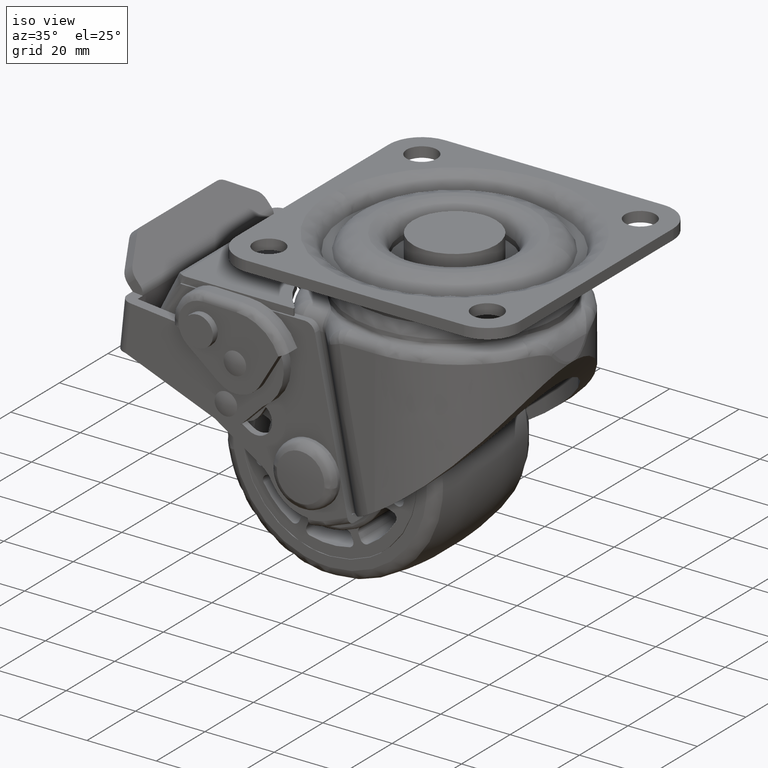
[diagram: clean part render]
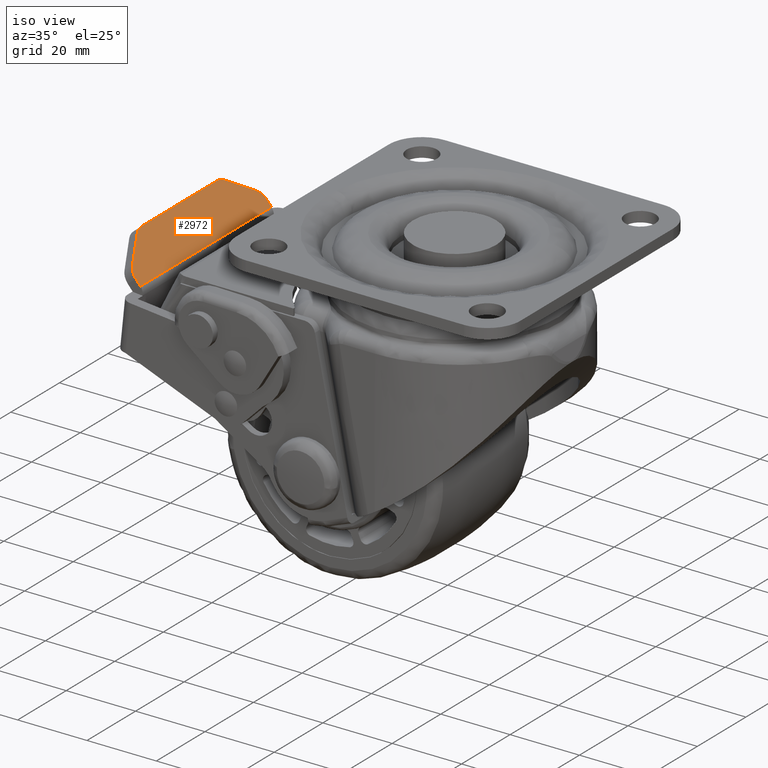
[diagram: same view with one face highlighted and labeled with its STEP entity id]
A machine part, iso view. The second image highlights one B-rep face of the part: STEP entity #2972.
In plain terms, the highlighted face is a freeform B-spline surface patch.
Its self-contained STEP definition (entity closure, byte-faithful):
#2146=CARTESIAN_POINT('',(-57.440192999999887,-15.596875762567301,43.825969000000093));
#2147=VERTEX_POINT('',#2146);
#2153=CARTESIAN_POINT('',(-57.440192999999887,15.596875762566849,43.825969000000093));
#2154=VERTEX_POINT('',#2153);
#2155=CARTESIAN_POINT('',(-57.440192999999887,15.596875762566849,43.825969000000093));
#2156=CARTESIAN_POINT('',(-57.440192999999887,-15.596875762567301,43.825969000000093));
#2157=QUASI_UNIFORM_CURVE('',1,(#2155,#2156),.UNSPECIFIED.,.F.,.U.);
#2158=EDGE_CURVE('',#2154,#2147,#2157,.T.);
#2623=CARTESIAN_POINT('',(-56.875527778846603,18.095655952784401,43.155559537941002));
#2624=VERTEX_POINT('',#2623);
#2625=CARTESIAN_POINT('',(-56.875527778846603,18.095655952784401,43.155559537941002));
#2626=CARTESIAN_POINT('',(-56.977366238581958,17.898089788612811,43.276469175103841));
#2627=CARTESIAN_POINT('',(-57.166745423999537,17.449204319974800,43.501313194293978));
#2628=CARTESIAN_POINT('',(-57.382708289088207,16.608947584924440,43.757719189890999));
#2629=CARTESIAN_POINT('',(-57.440260782196617,15.962371717794131,43.826049475695022));
#2630=CARTESIAN_POINT('',(-57.440192999999887,15.596875762566849,43.825969000000093));
#2631=B_SPLINE_CURVE_WITH_KNOTS('',3,(#2625,#2626,#2627,#2628,#2629,#2630),.UNSPECIFIED.,.F.,.U.,(4,1,1,4),(0.000000032944542,0.759098628505405,1.602524868357212,2.699013758988474),.UNSPECIFIED.);
#2632=EDGE_CURVE('',#2624,#2154,#2631,.T.);
#2682=CARTESIAN_POINT('',(-53.060199824728400,25.498780190217349,38.625739273687550));
#2683=VERTEX_POINT('',#2682);
#2689=CARTESIAN_POINT('',(-51.048028678050308,27.0,36.236751028121503));
#2690=VERTEX_POINT('',#2689);
#2691=CARTESIAN_POINT('',(-51.048028678050308,27.0,36.236751028121503));
#2692=CARTESIAN_POINT('',(-51.384821109852084,27.000528099568559,36.636614211776767));
#2693=CARTESIAN_POINT('',(-51.913671210352419,26.836626970371292,37.264501494549982));
#2694=CARTESIAN_POINT('',(-52.591831552820793,26.255801181383379,38.069660185668141));
#2695=CARTESIAN_POINT('',(-52.910013859882227,25.790418917581860,38.447428146794202));
#2696=CARTESIAN_POINT('',(-53.060199824728400,25.498780190217349,38.625739273687550));
#2697=B_SPLINE_CURVE_WITH_KNOTS('',3,(#2691,#2692,#2693,#2694,#2695,#2696),.UNSPECIFIED.,.F.,.U.,(4,1,1,4),(0.000000061317118,1.568131767088776,2.464169144986196,3.584250810880933),.UNSPECIFIED.);
#2698=EDGE_CURVE('',#2690,#2683,#2697,.T.);
#2732=CARTESIAN_POINT('',(-56.875527778846497,-18.095655952785151,43.155559537940803));
#2733=VERTEX_POINT('',#2732);
#2739=CARTESIAN_POINT('',(-57.440192999999887,-15.596875762567301,43.825969000000093));
#2740=CARTESIAN_POINT('',(-57.440345620462587,-16.018620693279161,43.826150201530680));
#2741=CARTESIAN_POINT('',(-57.347622997139510,-16.918100144595829,43.716063513535502));
#2742=CARTESIAN_POINT('',(-57.068106569650460,-17.722665557511920,43.384202349133012));
#2743=CARTESIAN_POINT('',(-56.875527778846497,-18.095655952785151,43.155559537940803));
#2744=B_SPLINE_CURVE_WITH_KNOTS('',3,(#2739,#2740,#2741,#2742,#2743),.UNSPECIFIED.,.F.,.U.,(4,1,4),(0.000000032944620,1.265172220273799,2.699013758988850),.UNSPECIFIED.);
#2745=EDGE_CURVE('',#2147,#2733,#2744,.T.);
#2765=CARTESIAN_POINT('',(-53.060199824728201,-25.498780190218099,38.625739273687451));
#2766=VERTEX_POINT('',#2765);
#2767=CARTESIAN_POINT('',(-51.048028678050308,-27.0,36.236751028121503));
#2768=VERTEX_POINT('',#2767);
#2769=CARTESIAN_POINT('',(-53.060199824728201,-25.498780190218099,38.625739273687451));
#2770=CARTESIAN_POINT('',(-52.955035491113897,-25.702873390344362,38.500880929867073));
#2771=CARTESIAN_POINT('',(-52.701951550354657,-26.105784702112430,38.200402235192641));
#2772=CARTESIAN_POINT('',(-52.279067089449100,-26.543452466333679,37.698324661918647));
#2773=CARTESIAN_POINT('',(-51.721402452190929,-26.901343903672672,37.036226775475527));
#2774=CARTESIAN_POINT('',(-51.312621483258013,-27.000202780226950,36.550893839753641));
#2775=CARTESIAN_POINT('',(-51.048028678050308,-27.0,36.236751028121503));
#2776=B_SPLINE_CURVE_WITH_KNOTS('',3,(#2769,#2770,#2771,#2772,#2773,#2774,#2775),.UNSPECIFIED.,.F.,.U.,(4,1,1,1,4),(0.000000061322497,0.784052258614834,1.680134408930833,2.352162160984559,3.584250810880481),.UNSPECIFIED.);
#2777=EDGE_CURVE('',#2766,#2768,#2776,.T.);
#2810=CARTESIAN_POINT('',(-53.060199824728400,25.498780190217349,38.625739273687550));
#2811=CARTESIAN_POINT('',(-56.875527778846603,18.095655952784401,43.155559537941002));
#2812=QUASI_UNIFORM_CURVE('',1,(#2810,#2811),.UNSPECIFIED.,.F.,.U.);
#2813=EDGE_CURVE('',#2683,#2624,#2812,.T.);
#2836=CARTESIAN_POINT('',(-56.875527778846497,-18.095655952785151,43.155559537940803));
#2837=CARTESIAN_POINT('',(-53.060199824728201,-25.498780190218099,38.625739273687451));
#2838=QUASI_UNIFORM_CURVE('',1,(#2836,#2837),.UNSPECIFIED.,.F.,.U.);
#2839=EDGE_CURVE('',#2733,#2766,#2838,.T.);
#2850=CARTESIAN_POINT('',(-49.709680918917087,-27.0,34.647772341925993));
#2851=VERTEX_POINT('',#2850);
#2852=CARTESIAN_POINT('',(-49.709680918917087,-27.0,34.647772341925993));
#2853=CARTESIAN_POINT('',(-51.048028678050308,-27.0,36.236751028121503));
#2854=QUASI_UNIFORM_CURVE('',1,(#2852,#2853),.UNSPECIFIED.,.F.,.U.);
#2855=EDGE_CURVE('',#2851,#2768,#2854,.T.);
#2911=CARTESIAN_POINT('',(-49.709680918917087,27.0,34.647772341925993));
#2912=VERTEX_POINT('',#2911);
#2913=CARTESIAN_POINT('',(-49.709680918917087,27.0,34.647772341925993));
#2914=CARTESIAN_POINT('',(-51.048028678050308,27.0,36.236751028121503));
#2915=QUASI_UNIFORM_CURVE('',1,(#2913,#2914),.UNSPECIFIED.,.F.,.U.);
#2916=EDGE_CURVE('',#2912,#2690,#2915,.T.);
#2951=CARTESIAN_POINT('',(-57.826332063466772,-29.697299895337519,44.284419905281759));
#2952=CARTESIAN_POINT('',(-49.323541648101752,-29.697299895337519,34.189321190465897));
#2953=CARTESIAN_POINT('',(-57.826332063466772,29.697301343730391,44.284419905281759));
#2954=CARTESIAN_POINT('',(-49.323541648101752,29.697301343730391,34.189321190465897));
#2955=B_SPLINE_SURFACE_WITH_KNOTS('',1,1,((#2951,#2953),(#2952,#2954)),.UNSPECIFIED.,.F.,.F.,.U.,(2,2),(2,2),(0.0,13.198805359179300),(0.0,59.394601239067910),.UNSPECIFIED.);
#2956=ORIENTED_EDGE('',*,*,#2839,.T.);
#2957=ORIENTED_EDGE('',*,*,#2777,.T.);
#2958=ORIENTED_EDGE('',*,*,#2855,.F.);
#2959=CARTESIAN_POINT('',(-49.709680918917087,27.0,34.647772341925993));
#2960=CARTESIAN_POINT('',(-49.709680918917087,-27.0,34.647772341925993));
#2961=QUASI_UNIFORM_CURVE('',1,(#2959,#2960),.UNSPECIFIED.,.F.,.U.);
#2962=EDGE_CURVE('',#2912,#2851,#2961,.T.);
#2963=ORIENTED_EDGE('',*,*,#2962,.F.);
#2964=ORIENTED_EDGE('',*,*,#2916,.T.);
#2965=ORIENTED_EDGE('',*,*,#2698,.T.);
#2966=ORIENTED_EDGE('',*,*,#2813,.T.);
#2967=ORIENTED_EDGE('',*,*,#2632,.T.);
#2968=ORIENTED_EDGE('',*,*,#2158,.T.);
#2969=ORIENTED_EDGE('',*,*,#2745,.T.);
#2970=EDGE_LOOP('',(#2956,#2957,#2958,#2963,#2964,#2965,#2966,#2967,#2968,#2969));
#2971=FACE_OUTER_BOUND('',#2970,.T.);
#2972=ADVANCED_FACE('',(#2971),#2955,.T.);